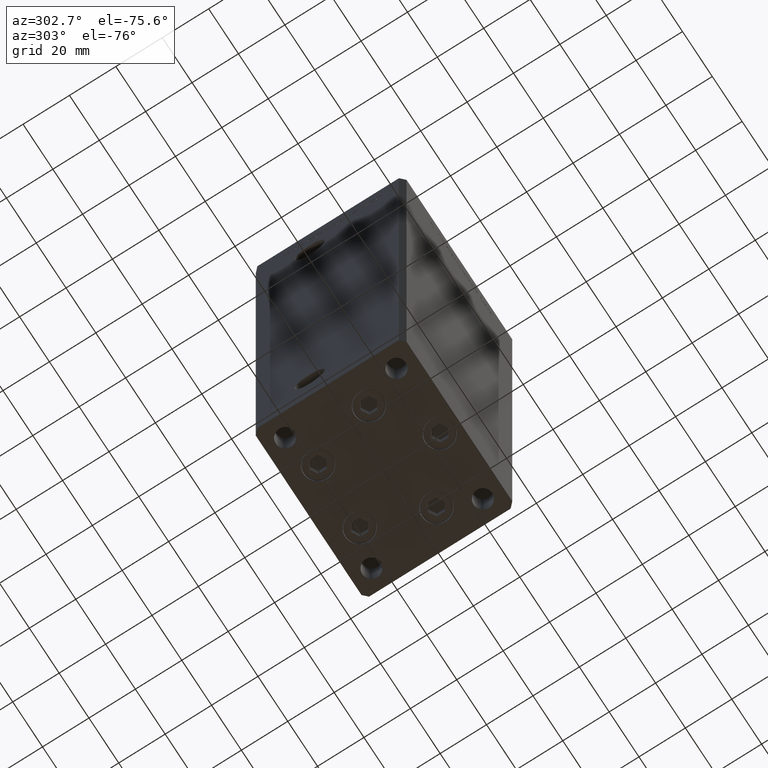
[diagram: clean part render]
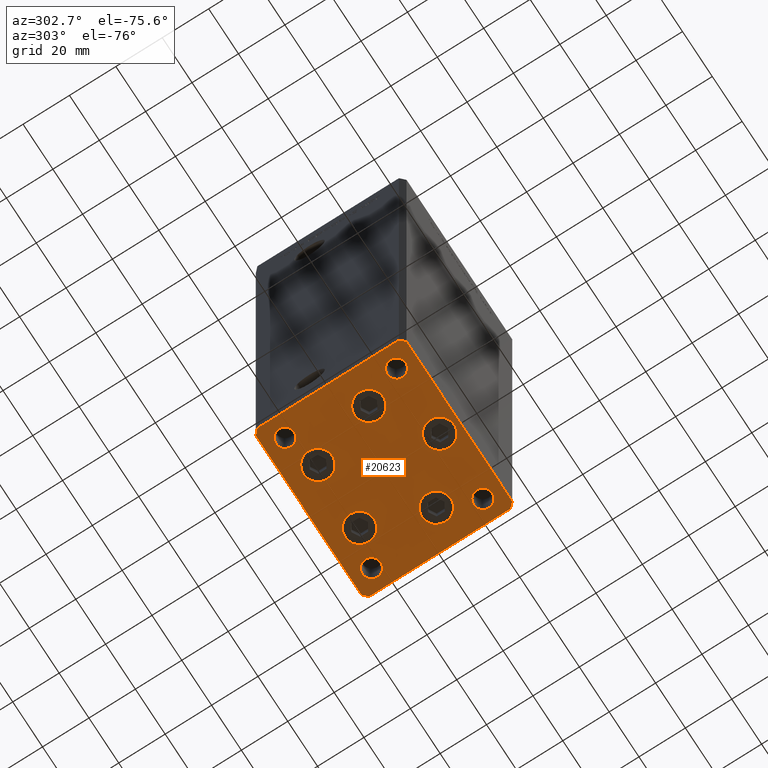
[diagram: same view with one face highlighted and labeled with its STEP entity id]
A machine part, auxiliary view. The second image highlights one B-rep face of the part: STEP entity #20623.
In plain terms, the highlighted planar face has unit normal (0, 0, -1).
Its self-contained STEP definition (entity closure, byte-faithful):
#208 = EDGE_CURVE ( 'NONE', #35054, #8539, #15321, .T. ) ;
#635 = CARTESIAN_POINT ( 'NONE',  ( 33.00000000000001421, -23.99999999999999289, 0.000000000000000000 ) ) ;
#740 = VECTOR ( 'NONE', #6904, 1000.000000000000000 ) ;
#798 = EDGE_CURVE ( 'NONE', #39144, #36792, #11696, .T. ) ;
#873 = VERTEX_POINT ( 'NONE', #51273 ) ;
#905 = DIRECTION ( 'NONE',  ( -0.000000000000000000, 0.000000000000000000, 1.000000000000000000 ) ) ;
#1430 = DIRECTION ( 'NONE',  ( 1.000000000000000000, 0.000000000000000000, 0.000000000000000000 ) ) ;
#1644 = CIRCLE ( 'NONE', #2502, 6.250000000000001776 ) ;
#1673 = VERTEX_POINT ( 'NONE', #19168 ) ;
#1936 = CARTESIAN_POINT ( 'NONE',  ( 13.99106857963322348, 19.50000000000000000, 0.000000000000000000 ) ) ;
#2062 = FACE_OUTER_BOUND ( 'NONE', #46170, .T. ) ;
#2128 = CIRCLE ( 'NONE', #49324, 6.250000000000000000 ) ;
#2273 = CARTESIAN_POINT ( 'NONE',  ( -29.00000000000001066, 24.00000000000000711, 0.000000000000000000 ) ) ;
#2361 = CARTESIAN_POINT ( 'NONE',  ( -29.00000000000001066, -23.99999999999999289, 0.000000000000000000 ) ) ;
#2502 = AXIS2_PLACEMENT_3D ( 'NONE', #27614, #34485, #39752 ) ;
#2585 = EDGE_CURVE ( 'NONE', #50794, #21363, #1644, .T. ) ;
#2888 = DIRECTION ( 'NONE',  ( 0.7071067811865474617, -0.7071067811865474617, 0.000000000000000000 ) ) ;
#3089 = LINE ( 'NONE', #6255, #44717 ) ;
#3407 = LINE ( 'NONE', #10534, #43133 ) ;
#3740 = CARTESIAN_POINT ( 'NONE',  ( 2.939152317953647500E-15, -24.00000000000000000, 0.000000000000000000 ) ) ;
#3768 = VERTEX_POINT ( 'NONE', #12260 ) ;
#3912 = EDGE_CURVE ( 'NONE', #3768, #42845, #11799, .T. ) ;
#4110 = EDGE_LOOP ( 'NONE', ( #10008, #25971 ) ) ;
#4168 = CARTESIAN_POINT ( 'NONE',  ( 22.62741699796951877, -8.000000000000000000, 0.000000000000000000 ) ) ;
#4720 = CIRCLE ( 'NONE', #49385, 6.250000000000001776 ) ;
#5277 = VERTEX_POINT ( 'NONE', #46305 ) ;
#5467 = AXIS2_PLACEMENT_3D ( 'NONE', #2273, #33664, #10443 ) ;
#5553 = CIRCLE ( 'NONE', #44303, 6.250000000000000000 ) ;
#5647 = DIRECTION ( 'NONE',  ( 0.000000000000000000, -0.000000000000000000, -1.000000000000000000 ) ) ;
#5737 = CARTESIAN_POINT ( 'NONE',  ( -37.50000000000001421, 30.49999999999998579, 0.000000000000000000 ) ) ;
#6255 = CARTESIAN_POINT ( 'NONE',  ( 35.50000000000000711, -32.50000000000000711, 0.000000000000000000 ) ) ;
#6590 = DIRECTION ( 'NONE',  ( 0.000000000000000000, -0.000000000000000000, -1.000000000000000000 ) ) ;
#6837 = DIRECTION ( 'NONE',  ( -0.000000000000000000, 0.000000000000000000, 1.000000000000000000 ) ) ;
#6904 = DIRECTION ( 'NONE',  ( 1.000000000000000000, 9.773090005503140331E-17, 0.000000000000000000 ) ) ;
#7098 = ORIENTED_EDGE ( 'NONE', *, *, #208, .T. ) ;
#7292 = LINE ( 'NONE', #26809, #11047 ) ;
#7465 = CARTESIAN_POINT ( 'NONE',  ( -37.50000000000001421, 30.49999999999998579, 0.000000000000000000 ) ) ;
#7700 = DIRECTION ( 'NONE',  ( 0.000000000000000000, -0.000000000000000000, -1.000000000000000000 ) ) ;
#7737 = CARTESIAN_POINT ( 'NONE',  ( 29.00000000000001066, -23.99999999999999289, 0.000000000000000000 ) ) ;
#8539 = VERTEX_POINT ( 'NONE', #19139 ) ;
#8606 = DIRECTION ( 'NONE',  ( 0.000000000000000000, -0.000000000000000000, -1.000000000000000000 ) ) ;
#8860 = ORIENTED_EDGE ( 'NONE', *, *, #25674, .T. ) ;
#8874 = CARTESIAN_POINT ( 'NONE',  ( 25.00000000000000711, 24.00000000000000711, 0.000000000000000000 ) ) ;
#9457 = DIRECTION ( 'NONE',  ( 0.000000000000000000, -0.000000000000000000, -1.000000000000000000 ) ) ;
#9724 = DIRECTION ( 'NONE',  ( 1.000000000000000000, 0.000000000000000000, 0.000000000000000000 ) ) ;
#9825 = DIRECTION ( 'NONE',  ( 1.000000000000000000, 0.000000000000000000, 0.000000000000000000 ) ) ;
#9984 = CARTESIAN_POINT ( 'NONE',  ( 0.000000000000000000, 0.000000000000000000, 0.000000000000000000 ) ) ;
#10008 = ORIENTED_EDGE ( 'NONE', *, *, #18450, .T. ) ;
#10328 = DIRECTION ( 'NONE',  ( 0.000000000000000000, -0.000000000000000000, -1.000000000000000000 ) ) ;
#10443 = DIRECTION ( 'NONE',  ( 1.000000000000000000, 0.000000000000000000, 0.000000000000000000 ) ) ;
#10534 = CARTESIAN_POINT ( 'NONE',  ( -37.49999999999998579, -30.50000000000001421, 0.000000000000000000 ) ) ;
#10554 = CIRCLE ( 'NONE', #25714, 6.250000000000001776 ) ;
#10654 = EDGE_LOOP ( 'NONE', ( #49553, #15806 ) ) ;
#10718 = CIRCLE ( 'NONE', #48641, 4.000000000000003553 ) ;
#11047 = VECTOR ( 'NONE', #26543, 1000.000000000000000 ) ;
#11178 = CARTESIAN_POINT ( 'NONE',  ( 7.741068579633223479, 19.50000000000000000, 0.000000000000000000 ) ) ;
#11541 = ORIENTED_EDGE ( 'NONE', *, *, #45006, .T. ) ;
#11623 = VERTEX_POINT ( 'NONE', #36871 ) ;
#11696 = CIRCLE ( 'NONE', #41191, 4.000000000000003553 ) ;
#11799 = CIRCLE ( 'NONE', #39604, 4.000000000000003553 ) ;
#11820 = EDGE_CURVE ( 'NONE', #8539, #14604, #3089, .T. ) ;
#12247 = AXIS2_PLACEMENT_3D ( 'NONE', #2361, #18456, #29803 ) ;
#12260 = CARTESIAN_POINT ( 'NONE',  ( 33.00000000000001421, 24.00000000000000711, 0.000000000000000000 ) ) ;
#12793 = VERTEX_POINT ( 'NONE', #37192 ) ;
#12873 = EDGE_CURVE ( 'NONE', #29198, #26671, #7292, .T. ) ;
#12877 = LINE ( 'NONE', #5737, #23768 ) ;
#13178 = FACE_BOUND ( 'NONE', #45445, .T. ) ;
#14174 = ORIENTED_EDGE ( 'NONE', *, *, #47118, .T. ) ;
#14224 = EDGE_LOOP ( 'NONE', ( #23662, #11541 ) ) ;
#14485 = CARTESIAN_POINT ( 'NONE',  ( 35.49999999999992184, 32.50000000000000711, 0.000000000000000000 ) ) ;
#14604 = VERTEX_POINT ( 'NONE', #17169 ) ;
#15068 = CARTESIAN_POINT ( 'NONE',  ( -35.49999999999998579, -32.50000000000001421, 0.000000000000000000 ) ) ;
#15317 = DIRECTION ( 'NONE',  ( 1.000000000000000000, 0.000000000000000000, 0.000000000000000000 ) ) ;
#15321 = LINE ( 'NONE', #15068, #740 ) ;
#15591 = EDGE_CURVE ( 'NONE', #1673, #35054, #3407, .T. ) ;
#15794 = EDGE_CURVE ( 'NONE', #34327, #1673, #12877, .T. ) ;
#15806 = ORIENTED_EDGE ( 'NONE', *, *, #47649, .F. ) ;
#16381 = DIRECTION ( 'NONE',  ( 1.000000000000000000, 0.000000000000000000, 0.000000000000000000 ) ) ;
#16996 = DIRECTION ( 'NONE',  ( 1.000000000000000000, 0.000000000000000000, 0.000000000000000000 ) ) ;
#17169 = CARTESIAN_POINT ( 'NONE',  ( 37.50000000000001421, -30.50000000000000711, 0.000000000000000000 ) ) ;
#17326 = CIRCLE ( 'NONE', #29119, 4.000000000000000000 ) ;
#17346 = VECTOR ( 'NONE', #19868, 1000.000000000000000 ) ;
#17385 = FACE_BOUND ( 'NONE', #10654, .T. ) ;
#17622 = EDGE_LOOP ( 'NONE', ( #37568, #8860 ) ) ;
#17643 = FACE_BOUND ( 'NONE', #17622, .T. ) ;
#17687 = DIRECTION ( 'NONE',  ( 1.000000000000000000, 0.000000000000000000, 0.000000000000000000 ) ) ;
#17898 = FACE_BOUND ( 'NONE', #42554, .T. ) ;
#17921 = ORIENTED_EDGE ( 'NONE', *, *, #40793, .T. ) ;
#17937 = CIRCLE ( 'NONE', #39022, 6.250000000000000000 ) ;
#18039 = EDGE_LOOP ( 'NONE', ( #28931, #39605 ) ) ;
#18159 = FACE_BOUND ( 'NONE', #14224, .T. ) ;
#18450 = EDGE_CURVE ( 'NONE', #12793, #35212, #17937, .T. ) ;
#18456 = DIRECTION ( 'NONE',  ( 0.000000000000000000, -0.000000000000000000, -1.000000000000000000 ) ) ;
#18674 = DIRECTION ( 'NONE',  ( 1.000000000000000000, 0.000000000000000000, 0.000000000000000000 ) ) ;
#18721 = EDGE_LOOP ( 'NONE', ( #30635, #29417 ) ) ;
#18733 = EDGE_CURVE ( 'NONE', #47655, #44650, #42367, .T. ) ;
#19139 = CARTESIAN_POINT ( 'NONE',  ( 35.50000000000000711, -32.50000000000000711, 0.000000000000000000 ) ) ;
#19168 = CARTESIAN_POINT ( 'NONE',  ( -37.49999999999998579, -30.50000000000001421, 0.000000000000000000 ) ) ;
#19868 = DIRECTION ( 'NONE',  ( -1.478780668045802821E-15, 1.000000000000000000, 0.000000000000000000 ) ) ;
#20050 = CARTESIAN_POINT ( 'NONE',  ( -33.00000000000000711, -23.99999999999999289, 0.000000000000000000 ) ) ;
#20060 = ORIENTED_EDGE ( 'NONE', *, *, #51344, .T. ) ;
#20623 = ADVANCED_FACE ( 'NONE', ( #38194, #18159, #13178, #29264, #17643, #17385, #17898, #45870, #2062, #22108 ), #33205, .T. ) ;
#20831 = CARTESIAN_POINT ( 'NONE',  ( -16.37741699796951877, -8.000000000000005329, 0.000000000000000000 ) ) ;
#20948 = CARTESIAN_POINT ( 'NONE',  ( 29.00000000000001066, 24.00000000000000711, 0.000000000000000000 ) ) ;
#21051 = CARTESIAN_POINT ( 'NONE',  ( -35.50000000000002842, 32.49999999999999289, 0.000000000000000000 ) ) ;
#21092 = CARTESIAN_POINT ( 'NONE',  ( -35.50000000000002842, 32.49999999999999289, 0.000000000000000000 ) ) ;
#21363 = VERTEX_POINT ( 'NONE', #20831 ) ;
#21369 = ORIENTED_EDGE ( 'NONE', *, *, #31913, .T. ) ;
#21412 = CARTESIAN_POINT ( 'NONE',  ( 29.00000000000001066, -23.99999999999999289, 0.000000000000000000 ) ) ;
#22108 = FACE_BOUND ( 'NONE', #18039, .T. ) ;
#23244 = CARTESIAN_POINT ( 'NONE',  ( -13.99106857963322703, 19.49999999999999645, 0.000000000000000000 ) ) ;
#23508 = VERTEX_POINT ( 'NONE', #51116 ) ;
#23662 = ORIENTED_EDGE ( 'NONE', *, *, #27746, .T. ) ;
#23689 = DIRECTION ( 'NONE',  ( 1.000000000000000000, 0.000000000000000000, 0.000000000000000000 ) ) ;
#23768 = VECTOR ( 'NONE', #45582, 1000.000000000000000 ) ;
#24461 = EDGE_CURVE ( 'NONE', #44650, #47655, #24816, .T. ) ;
#24816 = CIRCLE ( 'NONE', #5467, 3.999999999999996447 ) ;
#24865 = DIRECTION ( 'NONE',  ( 0.000000000000000000, -0.000000000000000000, -1.000000000000000000 ) ) ;
#24922 = AXIS2_PLACEMENT_3D ( 'NONE', #27524, #27777, #43633 ) ;
#25651 = EDGE_CURVE ( 'NONE', #51474, #44406, #47645, .T. ) ;
#25674 = EDGE_CURVE ( 'NONE', #21363, #50794, #10554, .T. ) ;
#25714 = AXIS2_PLACEMENT_3D ( 'NONE', #34528, #6590, #38226 ) ;
#25971 = ORIENTED_EDGE ( 'NONE', *, *, #26145, .T. ) ;
#26145 = EDGE_CURVE ( 'NONE', #35212, #12793, #5553, .T. ) ;
#26193 = EDGE_LOOP ( 'NONE', ( #45088, #17921 ) ) ;
#26543 = DIRECTION ( 'NONE',  ( -1.000000000000000000, -1.954618001100629052E-16, 0.000000000000000000 ) ) ;
#26624 = CIRCLE ( 'NONE', #24922, 6.250000000000001776 ) ;
#26671 = VERTEX_POINT ( 'NONE', #21051 ) ;
#26735 = EDGE_CURVE ( 'NONE', #44406, #51474, #17326, .T. ) ;
#26809 = CARTESIAN_POINT ( 'NONE',  ( 35.49999999999992184, 32.50000000000000711, 0.000000000000000000 ) ) ;
#27519 = ORIENTED_EDGE ( 'NONE', *, *, #12873, .T. ) ;
#27524 = CARTESIAN_POINT ( 'NONE',  ( 22.62741699796951877, -8.000000000000000000, 0.000000000000000000 ) ) ;
#27614 = CARTESIAN_POINT ( 'NONE',  ( -22.62741699796951877, -8.000000000000005329, 0.000000000000000000 ) ) ;
#27704 = LINE ( 'NONE', #36132, #40200 ) ;
#27746 = EDGE_CURVE ( 'NONE', #47059, #43339, #34933, .T. ) ;
#27777 = DIRECTION ( 'NONE',  ( 0.000000000000000000, -0.000000000000000000, -1.000000000000000000 ) ) ;
#28931 = ORIENTED_EDGE ( 'NONE', *, *, #25651, .T. ) ;
#29119 = AXIS2_PLACEMENT_3D ( 'NONE', #30268, #29749, #49798 ) ;
#29198 = VERTEX_POINT ( 'NONE', #14485 ) ;
#29264 = FACE_BOUND ( 'NONE', #26193, .T. ) ;
#29417 = ORIENTED_EDGE ( 'NONE', *, *, #18733, .F. ) ;
#29749 = DIRECTION ( 'NONE',  ( 0.000000000000000000, -0.000000000000000000, -1.000000000000000000 ) ) ;
#29803 = DIRECTION ( 'NONE',  ( 1.000000000000000000, 0.000000000000000000, 0.000000000000000000 ) ) ;
#29963 = CIRCLE ( 'NONE', #40934, 6.250000000000000000 ) ;
#30268 = CARTESIAN_POINT ( 'NONE',  ( -29.00000000000001066, -23.99999999999999289, 0.000000000000000000 ) ) ;
#30571 = CARTESIAN_POINT ( 'NONE',  ( -29.00000000000001066, 24.00000000000000711, 0.000000000000000000 ) ) ;
#30635 = ORIENTED_EDGE ( 'NONE', *, *, #24461, .F. ) ;
#31212 = CARTESIAN_POINT ( 'NONE',  ( -35.49999999999998579, -32.50000000000001421, 0.000000000000000000 ) ) ;
#31451 = CARTESIAN_POINT ( 'NONE',  ( 37.49999999999992184, 30.50000000000001066, 0.000000000000000000 ) ) ;
#31480 = DIRECTION ( 'NONE',  ( 1.000000000000000000, 0.000000000000000000, 0.000000000000000000 ) ) ;
#31913 = EDGE_CURVE ( 'NONE', #873, #23508, #26624, .T. ) ;
#32246 = LINE ( 'NONE', #40180, #17346 ) ;
#32647 = EDGE_CURVE ( 'NONE', #23508, #873, #4720, .T. ) ;
#32663 = ORIENTED_EDGE ( 'NONE', *, *, #35601, .T. ) ;
#33205 = PLANE ( 'NONE',  #48359 ) ;
#33467 = DIRECTION ( 'NONE',  ( -0.000000000000000000, 0.000000000000000000, 1.000000000000000000 ) ) ;
#33511 = CARTESIAN_POINT ( 'NONE',  ( -33.00000000000000711, 24.00000000000000711, 0.000000000000000000 ) ) ;
#33655 = ORIENTED_EDGE ( 'NONE', *, *, #15591, .T. ) ;
#33664 = DIRECTION ( 'NONE',  ( -0.000000000000000000, 0.000000000000000000, 1.000000000000000000 ) ) ;
#34327 = VERTEX_POINT ( 'NONE', #7465 ) ;
#34485 = DIRECTION ( 'NONE',  ( 0.000000000000000000, -0.000000000000000000, -1.000000000000000000 ) ) ;
#34528 = CARTESIAN_POINT ( 'NONE',  ( -22.62741699796951877, -8.000000000000005329, 0.000000000000000000 ) ) ;
#34933 = CIRCLE ( 'NONE', #42633, 6.250000000000000000 ) ;
#35054 = VERTEX_POINT ( 'NONE', #31212 ) ;
#35120 = CIRCLE ( 'NONE', #51953, 6.250000000000000000 ) ;
#35212 = VERTEX_POINT ( 'NONE', #36982 ) ;
#35260 = ORIENTED_EDGE ( 'NONE', *, *, #32647, .T. ) ;
#35601 = EDGE_CURVE ( 'NONE', #26671, #34327, #35873, .T. ) ;
#35693 = DIRECTION ( 'NONE',  ( 0.000000000000000000, -0.000000000000000000, -1.000000000000000000 ) ) ;
#35873 = LINE ( 'NONE', #21092, #37372 ) ;
#36132 = CARTESIAN_POINT ( 'NONE',  ( 37.49999999999992184, 30.50000000000001066, 0.000000000000000000 ) ) ;
#36792 = VERTEX_POINT ( 'NONE', #45580 ) ;
#36863 = DIRECTION ( 'NONE',  ( 0.000000000000000000, -0.000000000000000000, -1.000000000000000000 ) ) ;
#36871 = CARTESIAN_POINT ( 'NONE',  ( 6.250000000000002665, -24.00000000000000000, 0.000000000000000000 ) ) ;
#36917 = DIRECTION ( 'NONE',  ( -0.7071067811865482389, 0.7071067811865469066, 0.000000000000000000 ) ) ;
#36982 = CARTESIAN_POINT ( 'NONE',  ( -7.741068579633227031, 19.49999999999999645, 0.000000000000000000 ) ) ;
#37192 = CARTESIAN_POINT ( 'NONE',  ( -20.24106857963322881, 19.49999999999999645, 0.000000000000000000 ) ) ;
#37372 = VECTOR ( 'NONE', #48807, 1000.000000000000000 ) ;
#37469 = CARTESIAN_POINT ( 'NONE',  ( 29.00000000000001066, 24.00000000000000711, 0.000000000000000000 ) ) ;
#37568 = ORIENTED_EDGE ( 'NONE', *, *, #2585, .T. ) ;
#38194 = FACE_BOUND ( 'NONE', #4110, .T. ) ;
#38226 = DIRECTION ( 'NONE',  ( 1.000000000000000000, 0.000000000000000000, 0.000000000000000000 ) ) ;
#39022 = AXIS2_PLACEMENT_3D ( 'NONE', #23244, #10328, #15317 ) ;
#39144 = VERTEX_POINT ( 'NONE', #635 ) ;
#39604 = AXIS2_PLACEMENT_3D ( 'NONE', #20948, #905, #16996 ) ;
#39605 = ORIENTED_EDGE ( 'NONE', *, *, #26735, .T. ) ;
#39734 = ORIENTED_EDGE ( 'NONE', *, *, #11820, .T. ) ;
#39752 = DIRECTION ( 'NONE',  ( 1.000000000000000000, 0.000000000000000000, 0.000000000000000000 ) ) ;
#39773 = CARTESIAN_POINT ( 'NONE',  ( -25.00000000000001421, 24.00000000000000711, 0.000000000000000000 ) ) ;
#40180 = CARTESIAN_POINT ( 'NONE',  ( 37.50000000000001421, -30.50000000000000711, 0.000000000000000000 ) ) ;
#40200 = VECTOR ( 'NONE', #36917, 999.9999999999998863 ) ;
#40409 = ORIENTED_EDGE ( 'NONE', *, *, #798, .T. ) ;
#40793 = EDGE_CURVE ( 'NONE', #11623, #5277, #29963, .T. ) ;
#40934 = AXIS2_PLACEMENT_3D ( 'NONE', #3740, #7700, #16381 ) ;
#41191 = AXIS2_PLACEMENT_3D ( 'NONE', #7737, #35693, #31480 ) ;
#41465 = DIRECTION ( 'NONE',  ( 1.000000000000000000, 0.000000000000000000, 0.000000000000000000 ) ) ;
#41821 = CIRCLE ( 'NONE', #44362, 4.000000000000003553 ) ;
#42010 = CARTESIAN_POINT ( 'NONE',  ( -13.99106857963322703, 19.49999999999999645, 0.000000000000000000 ) ) ;
#42253 = ORIENTED_EDGE ( 'NONE', *, *, #15794, .T. ) ;
#42367 = CIRCLE ( 'NONE', #49121, 3.999999999999996447 ) ;
#42554 = EDGE_LOOP ( 'NONE', ( #40409, #20060 ) ) ;
#42633 = AXIS2_PLACEMENT_3D ( 'NONE', #45531, #8606, #48966 ) ;
#42740 = DIRECTION ( 'NONE',  ( -0.000000000000000000, 0.000000000000000000, 1.000000000000000000 ) ) ;
#42845 = VERTEX_POINT ( 'NONE', #8874 ) ;
#42972 = DIRECTION ( 'NONE',  ( 1.000000000000000000, 0.000000000000000000, 0.000000000000000000 ) ) ;
#43133 = VECTOR ( 'NONE', #2888, 1000.000000000000114 ) ;
#43177 = DIRECTION ( 'NONE',  ( 0.7071067811865487940, 0.7071067811865463515, 0.000000000000000000 ) ) ;
#43310 = VERTEX_POINT ( 'NONE', #31451 ) ;
#43339 = VERTEX_POINT ( 'NONE', #48070 ) ;
#43558 = CARTESIAN_POINT ( 'NONE',  ( -25.00000000000001066, -23.99999999999999289, 0.000000000000000000 ) ) ;
#43633 = DIRECTION ( 'NONE',  ( 1.000000000000000000, 0.000000000000000000, 0.000000000000000000 ) ) ;
#44303 = AXIS2_PLACEMENT_3D ( 'NONE', #42010, #24865, #9825 ) ;
#44362 = AXIS2_PLACEMENT_3D ( 'NONE', #37469, #42740, #17687 ) ;
#44406 = VERTEX_POINT ( 'NONE', #20050 ) ;
#44650 = VERTEX_POINT ( 'NONE', #39773 ) ;
#44717 = VECTOR ( 'NONE', #43177, 1000.000000000000000 ) ;
#45006 = EDGE_CURVE ( 'NONE', #43339, #47059, #2128, .T. ) ;
#45088 = ORIENTED_EDGE ( 'NONE', *, *, #49563, .T. ) ;
#45445 = EDGE_LOOP ( 'NONE', ( #35260, #21369 ) ) ;
#45531 = CARTESIAN_POINT ( 'NONE',  ( 13.99106857963322348, 19.50000000000000000, 0.000000000000000000 ) ) ;
#45580 = CARTESIAN_POINT ( 'NONE',  ( 25.00000000000000711, -23.99999999999999289, 0.000000000000000000 ) ) ;
#45582 = DIRECTION ( 'NONE',  ( 4.550094363217855288E-16, -1.000000000000000000, 0.000000000000000000 ) ) ;
#45612 = CARTESIAN_POINT ( 'NONE',  ( 2.939152317953647500E-15, -24.00000000000000000, 0.000000000000000000 ) ) ;
#45870 = FACE_BOUND ( 'NONE', #18721, .T. ) ;
#45872 = CARTESIAN_POINT ( 'NONE',  ( -28.87741699796952233, -8.000000000000005329, 0.000000000000000000 ) ) ;
#46170 = EDGE_LOOP ( 'NONE', ( #33655, #7098, #39734, #14174, #51797, #27519, #32663, #42253 ) ) ;
#46305 = CARTESIAN_POINT ( 'NONE',  ( -6.249999999999997335, -24.00000000000000000, 0.000000000000000000 ) ) ;
#47059 = VERTEX_POINT ( 'NONE', #11178 ) ;
#47118 = EDGE_CURVE ( 'NONE', #14604, #43310, #32246, .T. ) ;
#47645 = CIRCLE ( 'NONE', #12247, 4.000000000000000000 ) ;
#47649 = EDGE_CURVE ( 'NONE', #42845, #3768, #41821, .T. ) ;
#47655 = VERTEX_POINT ( 'NONE', #33511 ) ;
#48070 = CARTESIAN_POINT ( 'NONE',  ( 20.24106857963322526, 19.50000000000000000, 0.000000000000000000 ) ) ;
#48359 = AXIS2_PLACEMENT_3D ( 'NONE', #9984, #33467, #9724 ) ;
#48641 = AXIS2_PLACEMENT_3D ( 'NONE', #21412, #49394, #41465 ) ;
#48807 = DIRECTION ( 'NONE',  ( -0.7071067811865426878, -0.7071067811865524577, 0.000000000000000000 ) ) ;
#48966 = DIRECTION ( 'NONE',  ( 1.000000000000000000, 0.000000000000000000, 0.000000000000000000 ) ) ;
#49121 = AXIS2_PLACEMENT_3D ( 'NONE', #30571, #6837, #42972 ) ;
#49324 = AXIS2_PLACEMENT_3D ( 'NONE', #1936, #5647, #1430 ) ;
#49385 = AXIS2_PLACEMENT_3D ( 'NONE', #4168, #36863, #23689 ) ;
#49394 = DIRECTION ( 'NONE',  ( 0.000000000000000000, -0.000000000000000000, -1.000000000000000000 ) ) ;
#49553 = ORIENTED_EDGE ( 'NONE', *, *, #3912, .F. ) ;
#49563 = EDGE_CURVE ( 'NONE', #5277, #11623, #35120, .T. ) ;
#49798 = DIRECTION ( 'NONE',  ( 1.000000000000000000, 0.000000000000000000, 0.000000000000000000 ) ) ;
#50794 = VERTEX_POINT ( 'NONE', #45872 ) ;
#51116 = CARTESIAN_POINT ( 'NONE',  ( 16.37741699796951877, -8.000000000000000000, 0.000000000000000000 ) ) ;
#51273 = CARTESIAN_POINT ( 'NONE',  ( 28.87741699796952233, -8.000000000000000000, 0.000000000000000000 ) ) ;
#51344 = EDGE_CURVE ( 'NONE', #36792, #39144, #10718, .T. ) ;
#51474 = VERTEX_POINT ( 'NONE', #43558 ) ;
#51542 = EDGE_CURVE ( 'NONE', #43310, #29198, #27704, .T. ) ;
#51797 = ORIENTED_EDGE ( 'NONE', *, *, #51542, .T. ) ;
#51953 = AXIS2_PLACEMENT_3D ( 'NONE', #45612, #9457, #18674 ) ;